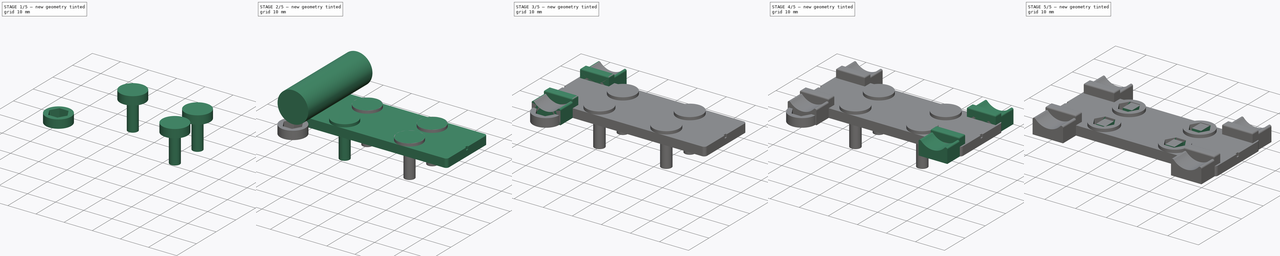
[diagram: build sequence overview — one tinted view per stage of 5, left to right]
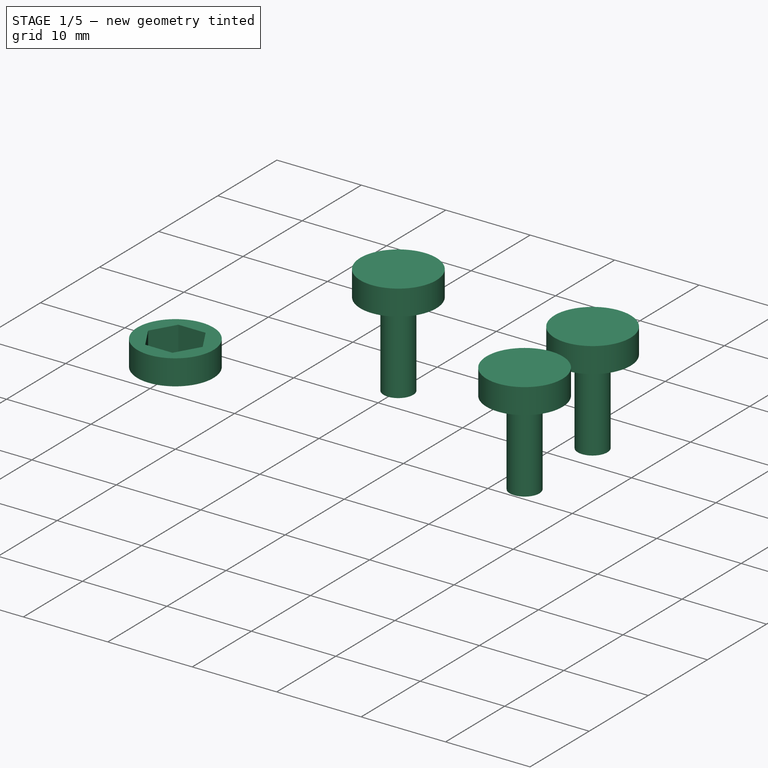
[diagram: stage 1 of 5 — iso view after this stage's code; geometry added in this stage tinted green]
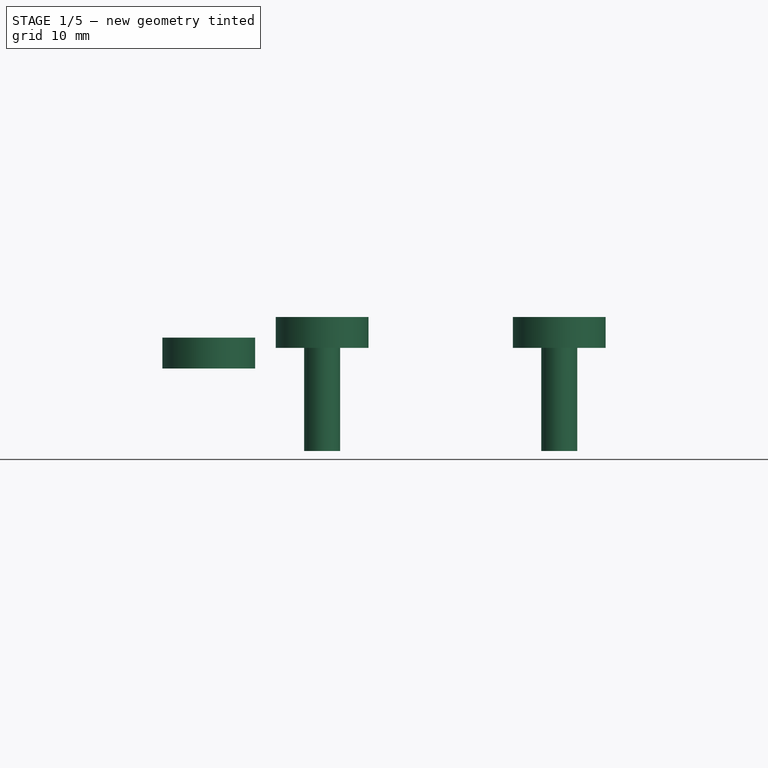
[diagram: stage 1 of 5 — front view after this stage's code; geometry added in this stage tinted green]
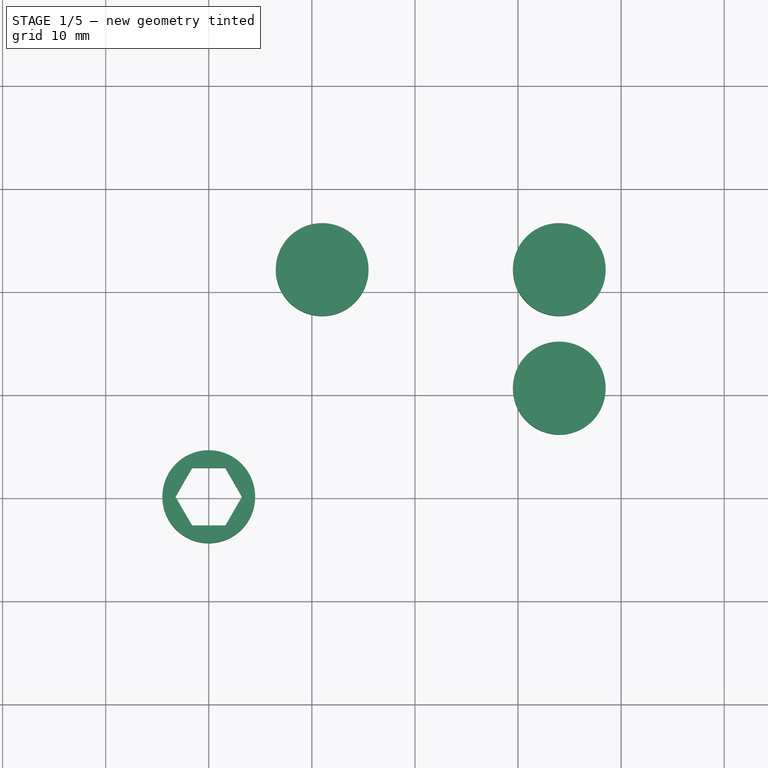
[diagram: stage 1 of 5 — top view after this stage's code; geometry added in this stage tinted green]
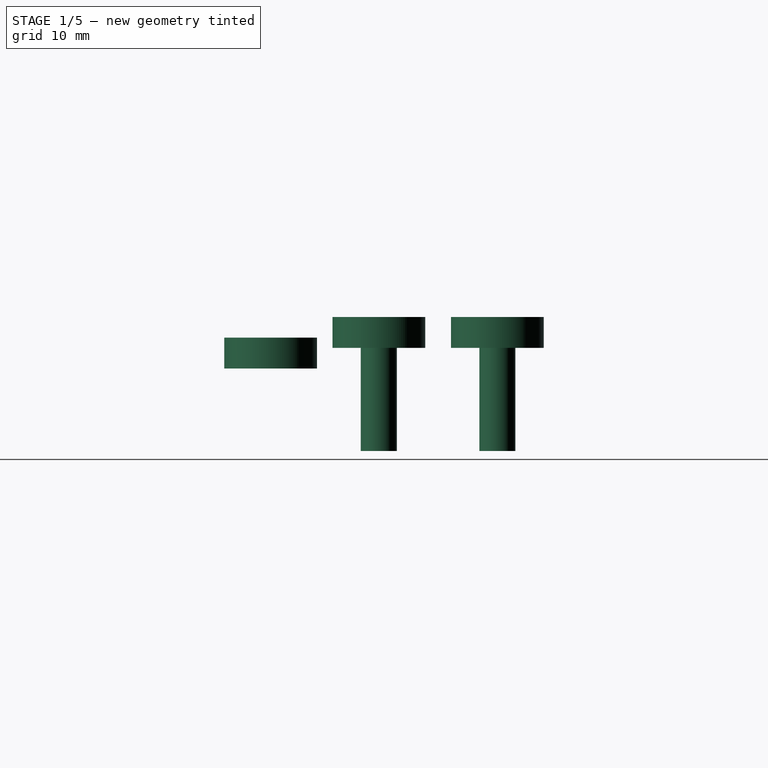
[diagram: stage 1 of 5 — right view after this stage's code; geometry added in this stage tinted green]
FCSTD DOCUMENT  (FreeCAD 0.19R24276 (Git))
Label: axleJig6
License: All rights reserved
LicenseURL: http://en.wikipedia.org/wiki/All_rights_reserved
objects: Part::Box×15, Part::Cylinder×10, Part::MultiFuse×10, Part::Cut×7, Part::Fillet×7, PartDesign::Pad×4, PartDesign::Body×4, Sketcher::SketchObject×2, Spreadsheet::Sheet×1, Part::Part2DObjectPython×1, Part::Extrusion×1
note: 65 computed .brp shape members not serialized (recipe doc carries the construction recipe); baked Part::Feature solids carry a one-line shape summary decoded from their .brp

FEATURE [Part::Cylinder] Cylinder005  label="Standoff001"
  Angle = 360
  AttacherType = Attacher::AttachEngine3D
  Height = 3
  Placement = pos=(0,0,2) rot=(0,0,1;0rad)
  Radius = 4.5
  expr: Radius = <<data>>.standoffDia / 2
FEATURE [Part::Cylinder] Cylinder006  label="M3hole001"
  Angle = 360
  AttacherType = Attacher::AttachEngine3D
  Height = 10
  Placement = pos=(0,0,-8) rot=(0,0,1;0rad)
  Radius = 1.75
  expr: Radius = <<data>>.m3holeDia / 2
FEATURE [Part::MultiFuse] Fusion005  label="NutCutout001"
  Placement = pos=(34,10.5,0) rot=(0,0,1;0rad)
  Shapes = -> [Cylinder005,Cylinder006]
FEATURE [Part::Cylinder] Cylinder007  label="Standoff002"
  Angle = 360
  AttacherType = Attacher::AttachEngine3D
  Height = 3
  Placement = pos=(0,0,2) rot=(0,0,1;0rad)
  Radius = 4.5
  expr: Radius = <<data>>.standoffDia / 2
FEATURE [Part::Cylinder] Cylinder008  label="M3hole002"
  Angle = 360
  AttacherType = Attacher::AttachEngine3D
  Height = 10
  Placement = pos=(0,0,-8) rot=(0,0,1;0rad)
  Radius = 1.75
  expr: Radius = <<data>>.m3holeDia / 2
FEATURE [Part::MultiFuse] Fusion006  label="NutCutout002"
  Placement = pos=(11,22,0) rot=(0,0,1;0rad)
  Shapes = -> [Cylinder007,Cylinder008]
FEATURE [Part::Cylinder] Cylinder009  label="Standoff003"
  Angle = 360
  AttacherType = Attacher::AttachEngine3D
  Height = 3
  Placement = pos=(0,0,2) rot=(0,0,1;0rad)
  Radius = 4.5
  expr: Radius = <<data>>.standoffDia / 2
FEATURE [Part::Cylinder] Cylinder010  label="M3hole003"
  Angle = 360
  AttacherType = Attacher::AttachEngine3D
  Height = 10
  Placement = pos=(0,0,-8) rot=(0,0,1;0rad)
  Radius = 1.75
  expr: Radius = <<data>>.m3holeDia / 2
FEATURE [Part::MultiFuse] Fusion007  label="NutCutout003"
  Placement = pos=(34,22,0) rot=(0,0,1;0rad)
  Shapes = -> [Cylinder009,Cylinder010]
FEATURE [PartDesign::Pad] Pad002
  Direction = (1,1,1)
  Length = 3
  Length2 = 100
  Profile = -> Sketch
  Type = 0
FEATURE [PartDesign::Body] Body002
  Group = -> [Pad002]
  Origin = -> Origin002
  Placement = pos=(34,10.5,1) rot=(0,0,1;0rad)
  Tip = -> Pad002
FEATURE [PartDesign::Pad] Pad003
  Direction = (1,1,1)
  Length = 3
  Length2 = 100
  Profile = -> Sketch
  Type = 0
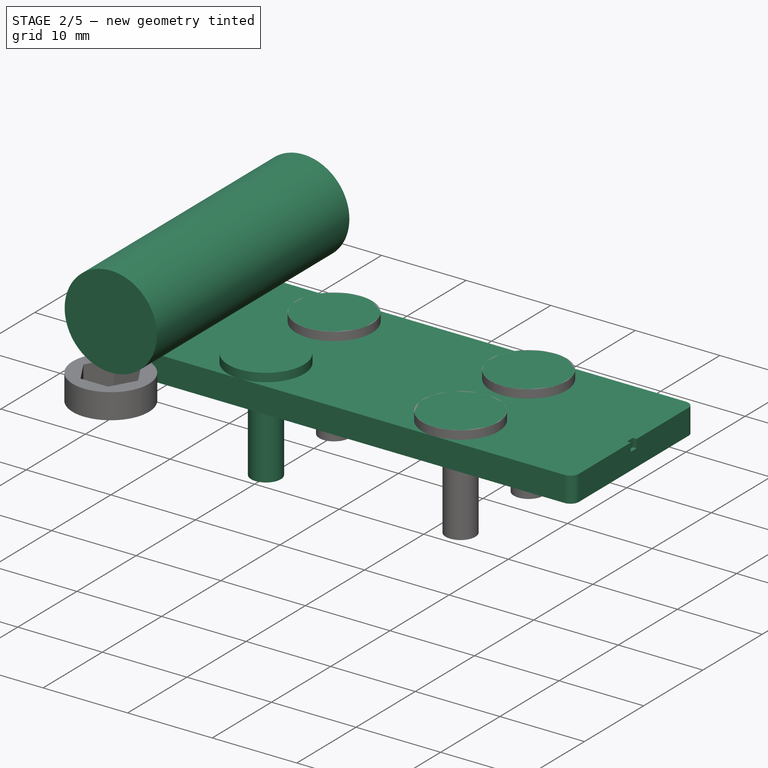
[diagram: stage 2 of 5 — iso view after this stage's code; geometry added in this stage tinted green]
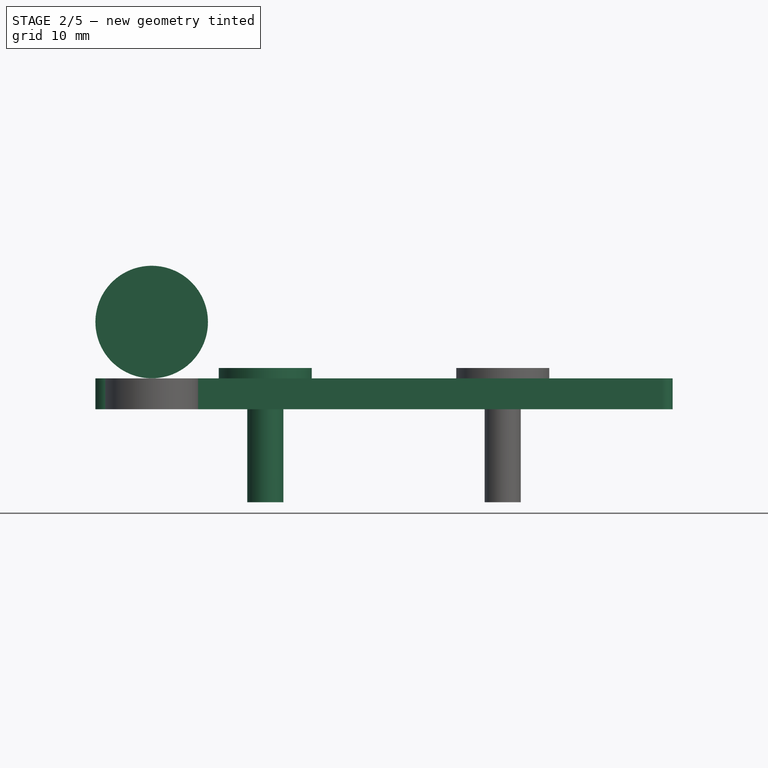
[diagram: stage 2 of 5 — front view after this stage's code; geometry added in this stage tinted green]
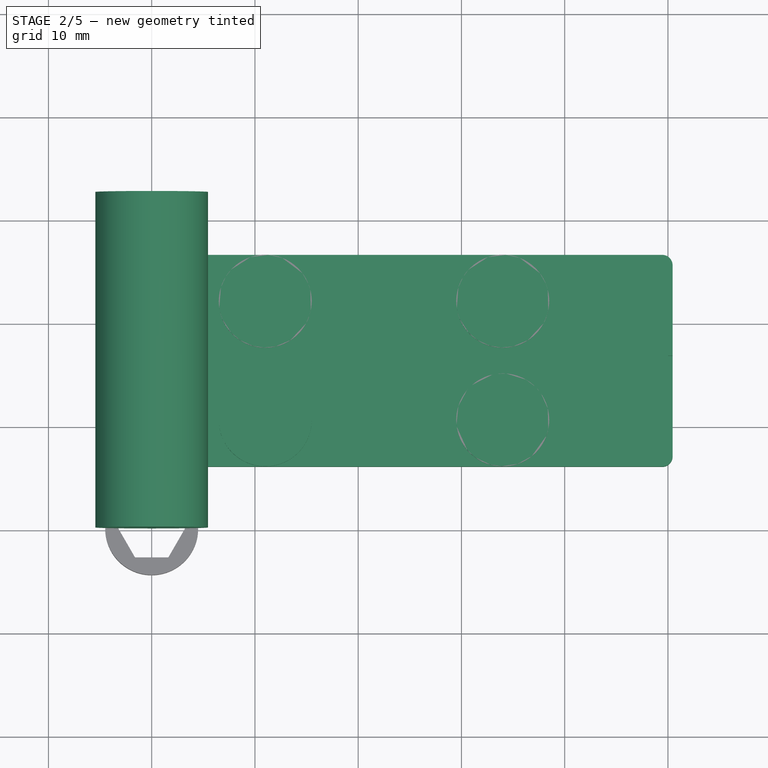
[diagram: stage 2 of 5 — top view after this stage's code; geometry added in this stage tinted green]
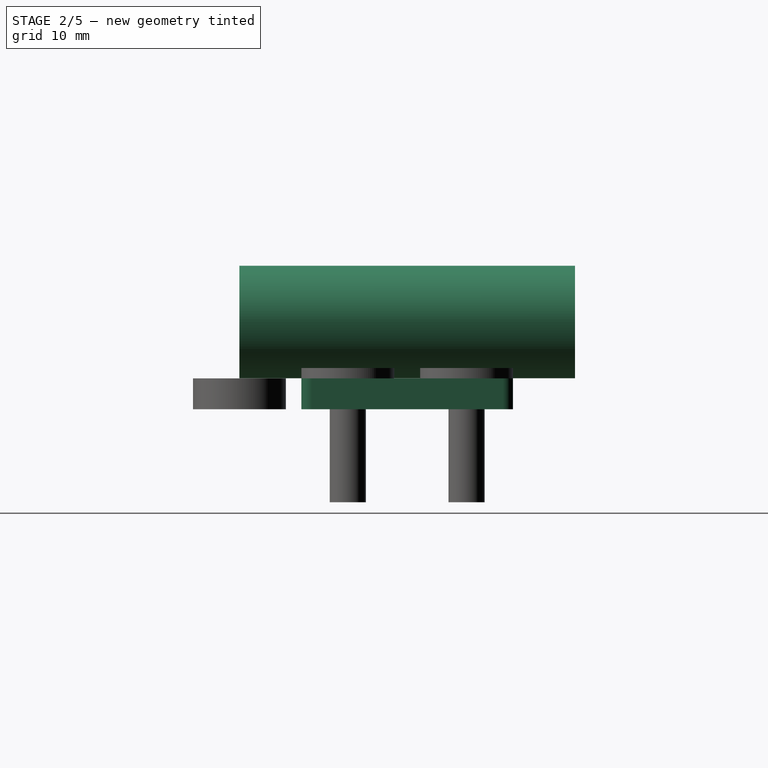
[diagram: stage 2 of 5 — right view after this stage's code; geometry added in this stage tinted green]
FEATURE [Part::Cylinder] Cylinder002
  Angle = 360
  AttacherType = Attacher::AttachEngine3D
  Height = 32.5
  Placement = pos=(0,0,8.45) rot=(-1,0,0;1.5708rad)
  Radius = 5.45
  expr: Radius = <<data>>.wheel_diameter_R / 2
  expr: Height = <<data>>.wheel_width * 2 + <<data>>.axle_width
  expr: .Placement.Base.z = <<data>>.wheel_diameter_R / 2 + <<data>>.base_thickness
FEATURE [Part::Box] Box026  label="Cube024"
  AttacherType = Attacher::AttachEngine3D
  Height = 1
  Length = 10
  Placement = pos=(-15,15.75,2) rot=(0,0,1;0rad)
  Width = 1
  expr: .Placement.Base.y = (<<data>>.wheel_width * 2 + <<data>>.axle_width) / 2 - 0.5mm
  expr: .Placement.Base.z = <<data>>.base_thickness - 1mm
FEATURE [Part::Box] Box027  label="Cube025"
  AttacherType = Attacher::AttachEngine3D
  Height = 1
  Length = 10
  Placement = pos=(50,15.75,2) rot=(0,0,1;0rad)
  Width = 1
  expr: .Placement.Base.x = <<data>>.wheel_base + 5mm
  expr: .Placement.Base.y = (<<data>>.wheel_width * 2 + <<data>>.axle_width) / 2 - 0.5mm
  expr: .Placement.Base.z = <<data>>.base_thickness - 1mm
FEATURE [Part::Box] Box008  label="base"
  AttacherType = Attacher::AttachEngine3D
  Height = 3
  Length = 55.9
  Placement = pos=(-5.45,6,0) rot=(0,0,1;0rad)
  Width = 20.5
  expr: .Placement.Base.x = -<<data>>.wheel_diameter_R / 2
  expr: Length = <<data>>.wheel_diameter_F / 2 + <<data>>.wheel_base + <<data>>.wheel_diameter_R / 2
  expr: Width = <<data>>.axle_width
  expr: Height = <<data>>.base_thickness
  expr: .Placement.Base.y = <<data>>.wheel_width
FEATURE [Part::Fillet] Fillet006
  Base = -> Box008
  Edges = 4 edges r=1: [Edge1,Edge3,Edge5,Edge7]
FEATURE [Part::MultiFuse] Fusion002
  Shapes = -> [Box027,Box026]
FEATURE [Part::Cut] Cut010
  Base = -> Fillet006
  Tool = -> Fusion002
FEATURE [PartDesign::Body] Body
  Group = -> [Sketch,Pad]
  Origin = -> Origin
  Placement = pos=(11,22,1) rot=(0,0,1;0rad)
  Tip = -> Pad
FEATURE [Part::Cylinder] Cylinder003  label="M3hole"
  Angle = 360
  AttacherType = Attacher::AttachEngine3D
  Height = 10
  Placement = pos=(0,0,-8) rot=(0,0,1;0rad)
  Radius = 1.75
  expr: Radius = <<data>>.m3holeDia / 2
FEATURE [Part::Cylinder] Cylinder004  label="Standoff"
  Angle = 360
  AttacherType = Attacher::AttachEngine3D
  Height = 3
  Placement = pos=(0,0,2) rot=(0,0,1;0rad)
  Radius = 4.5
  expr: Radius = <<data>>.standoffDia / 2
FEATURE [Part::MultiFuse] Fusion004  label="NutCutout"
  Placement = pos=(11,10.5,0) rot=(0,0,1;0rad)
  Shapes = -> [Cylinder004,Cylinder003]
FEATURE [PartDesign::Body] Body001
  Group = -> [Sketch001,Pad001]
  Origin = -> Origin001
  Placement = pos=(11,10.5,1) rot=(0,0,1;0rad)
  Tip = -> Pad001
FEATURE [Part::MultiFuse] Fusion008  label="NutCutouts"
  Placement = pos=(0,0,-1) rot=(0,0,1;0rad)
  Shapes = -> [Fusion004,Fusion005,Fusion006,Fusion007]
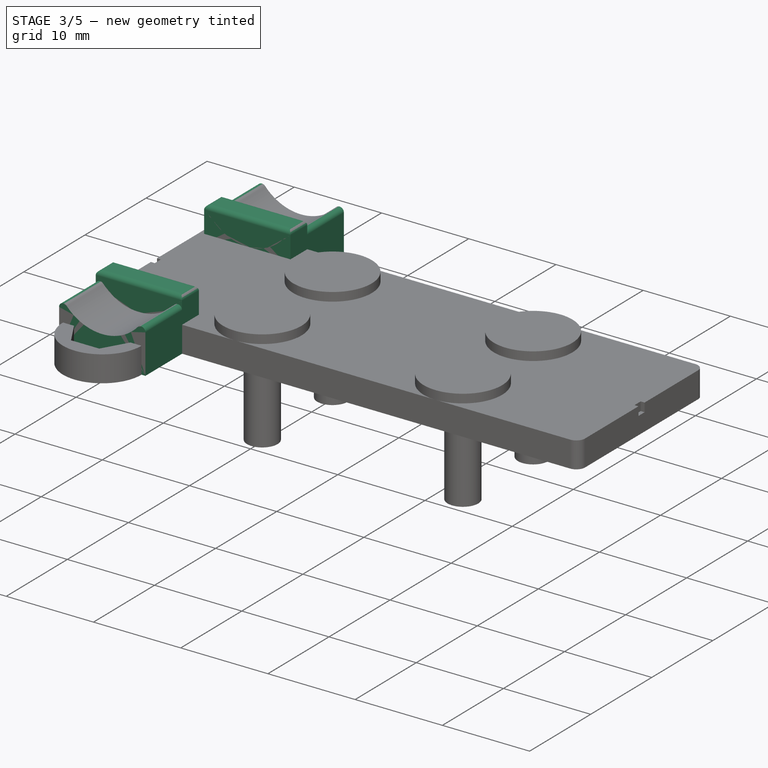
[diagram: stage 3 of 5 — iso view after this stage's code; geometry added in this stage tinted green]
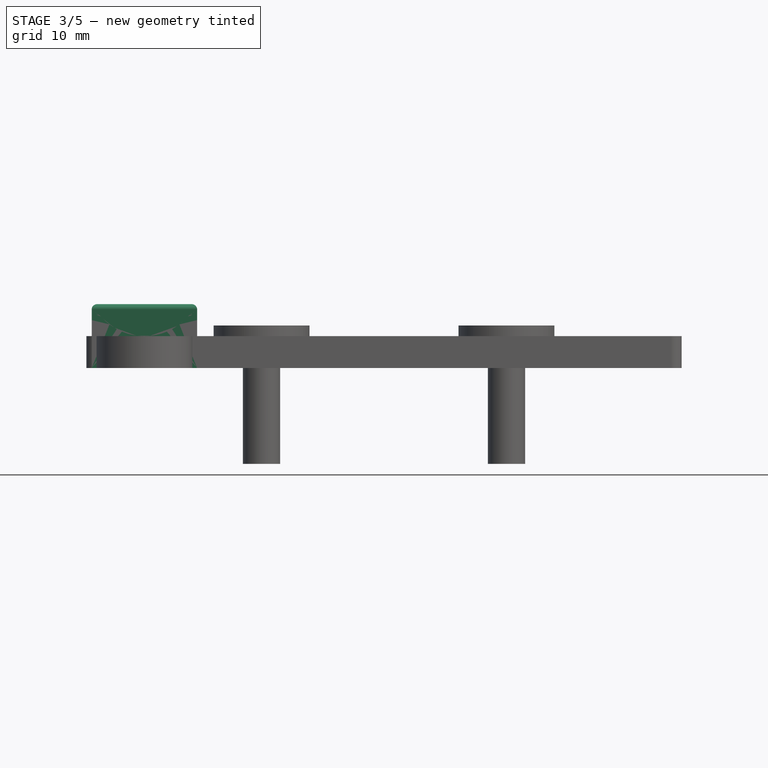
[diagram: stage 3 of 5 — front view after this stage's code; geometry added in this stage tinted green]
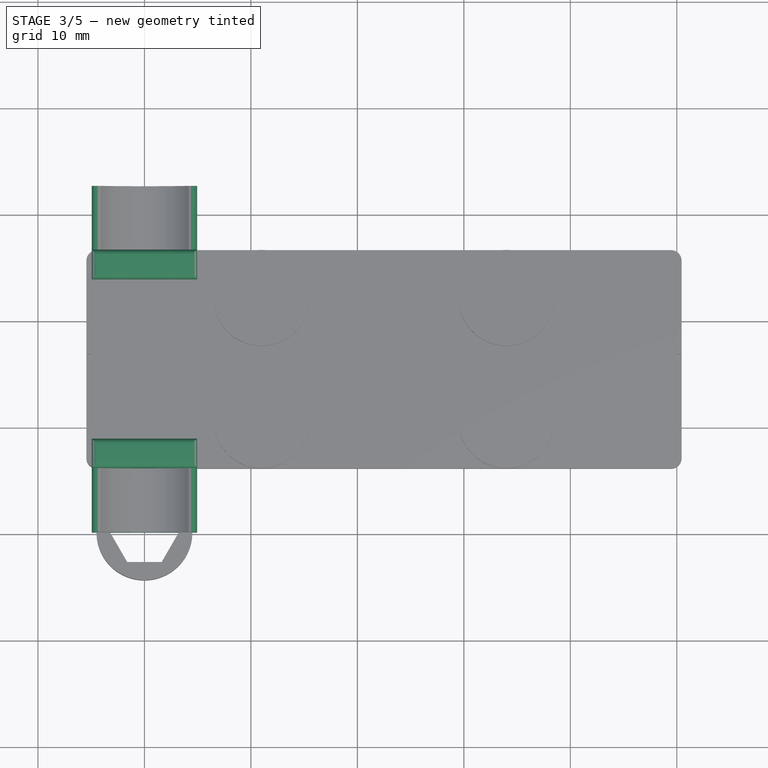
[diagram: stage 3 of 5 — top view after this stage's code; geometry added in this stage tinted green]
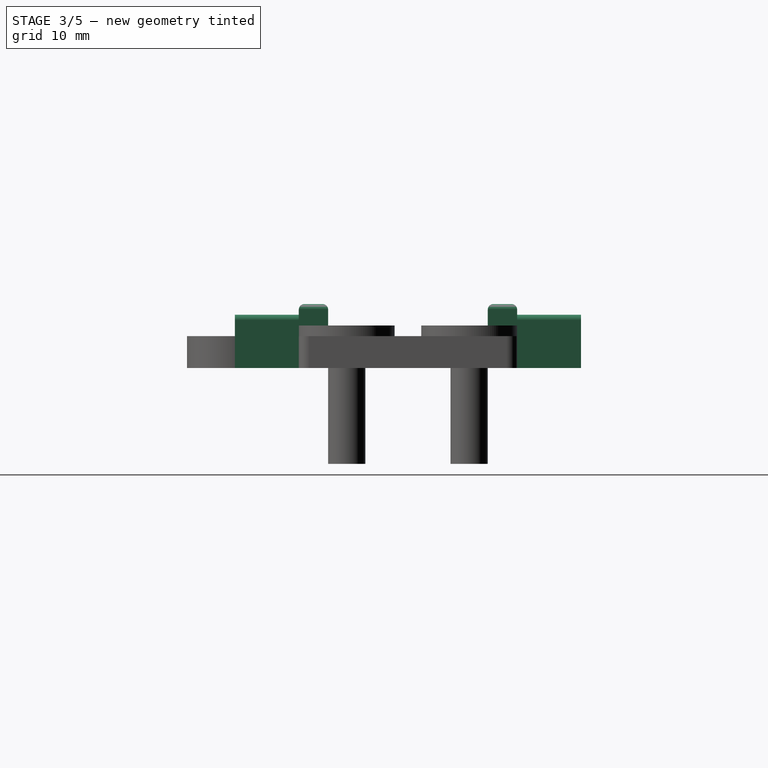
[diagram: stage 3 of 5 — right view after this stage's code; geometry added in this stage tinted green]
FEATURE [Part::Part2DObjectPython] ShapeString  # Draft 2D object (typed FeaturePython)
  FontFile = <userpath>/git/KiCad/Inkscape/fonts/Paladins-nl8P.otf
  Placement = pos=(0,18,0) rot=(1,0,0;3.14159rad)
  Size = 2
  String = BatMob.->
  Tracking = 0
FEATURE [Part::Box] Box022  label="Cube020"
  AttacherType = Attacher::AttachEngine3D
  Height = 10
  Length = 9.9
  Placement = pos=(-4.95,7.75,2) rot=(0,0,1;0rad)
  Width = 16
  expr: .Placement.Base.y = <<data>>.wheel_width + (<<data>>.axle_width - <<data>>.wheel_well) / 2 - 1mm
  expr: Width = <<data>>.wheel_well + 1mm
  expr: Length = Spreadsheet.wheel_diameter_R - 1mm
  expr: .Placement.Base.x = -<<data>>.wheel_diameter_R / 2 + 0.5mm
FEATURE [Part::Box] Box023  label="Cube021"
  AttacherType = Attacher::AttachEngine3D
  Height = 6
  Length = 9.9
  Placement = pos=(-4.95,6,0) rot=(0,0,1;0rad)
  Width = 2.75
  expr: Height = Spreadsheet.ride_height_r + <<data>>.base_thickness + 2mm
  expr: Length = Spreadsheet.wheel_diameter_R - 1mm
  expr: .Placement.Base.x = -Spreadsheet.wheel_diameter_R / 2 + 0.5mm
  expr: .Placement.Base.y = <<data>>.wheel_width
  expr: Width = (<<data>>.axle_width - <<data>>.wheel_well) / 2
FEATURE [Part::Fillet] Fillet004
  Base = -> Box023
  Edges = 4 edges r=0.5: [Edge2,Edge6,Edge10,Edge12]
FEATURE [Part::Box] Box024  label="Cube022"
  AttacherType = Attacher::AttachEngine3D
  Height = 6
  Length = 9.9
  Placement = pos=(-4.95,6,0) rot=(0,0,1;0rad)
  Width = 2.75
  expr: Height = Spreadsheet.ride_height_r + <<data>>.base_thickness + 2mm
  expr: Width = (<<data>>.axle_width - <<data>>.wheel_well) / 2
  expr: .Placement.Base.y = <<data>>.wheel_width
  expr: .Placement.Base.x = -<<data>>.wheel_diameter_R / 2 + 0.5mm
  expr: Length = Spreadsheet.wheel_diameter_R - 1mm
FEATURE [Part::Fillet] Fillet005
  Base = -> Box024
  Edges = 4 edges r=0.5: [Edge2,Edge6,Edge10,Edge12]
  Placement = pos=(0,17.75,0) rot=(0,0,1;0rad)
  expr: .Placement.Base.y = <<data>>.axle_width - (<<data>>.axle_width - <<data>>.wheel_well) / 2
FEATURE [Part::Box] Box025  label="Cube023"
  AttacherType = Attacher::AttachEngine3D
  Height = 8
  Length = 9.9
  Placement = pos=(-4.95,0,0) rot=(0,0,1;0rad)
  Width = 32.5
  expr: Width = <<data>>.wheel_width * 2 + <<data>>.axle_width
  expr: Length = Spreadsheet.wheel_diameter_R - 1mm
  expr: .Placement.Base.x = -Spreadsheet.wheel_diameter_R / 2 + 0.5mm
FEATURE [Part::Cut] Cut008
  Base = -> Box025
  Tool = -> Cylinder002
FEATURE [Part::Fillet] Fillet003
  Base = -> Cut008
  Edges = 2 edges r=0.5: [Edge2,Edge9]
FEATURE [Part::Cut] Cut009
  Base = -> Fillet003
  Tool = -> Box022
FEATURE [Part::MultiFuse] Fusion001  label="RearAxle001"
  Shapes = -> [Fillet005,Cut009,Fillet004]
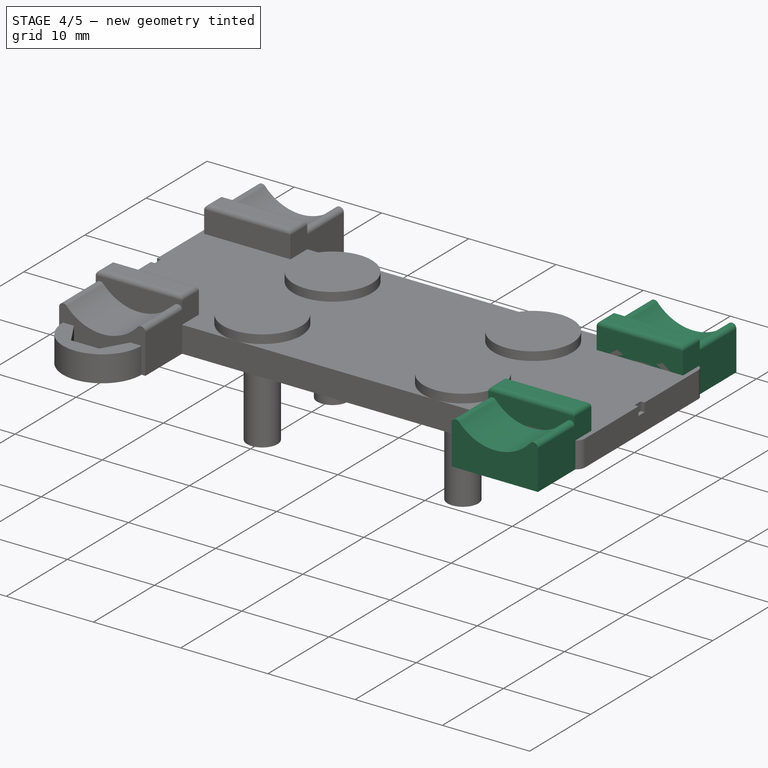
[diagram: stage 4 of 5 — iso view after this stage's code; geometry added in this stage tinted green]
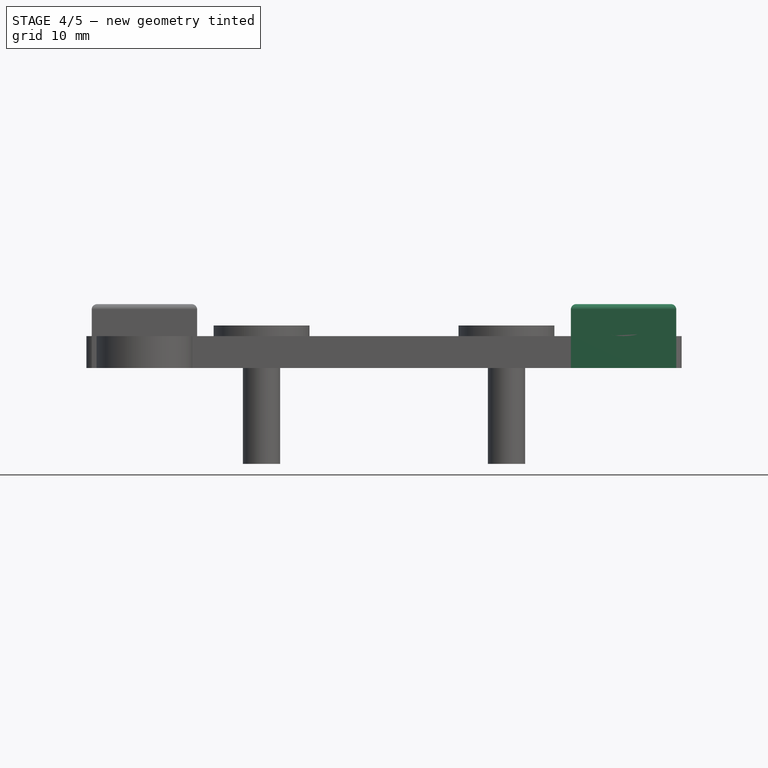
[diagram: stage 4 of 5 — front view after this stage's code; geometry added in this stage tinted green]
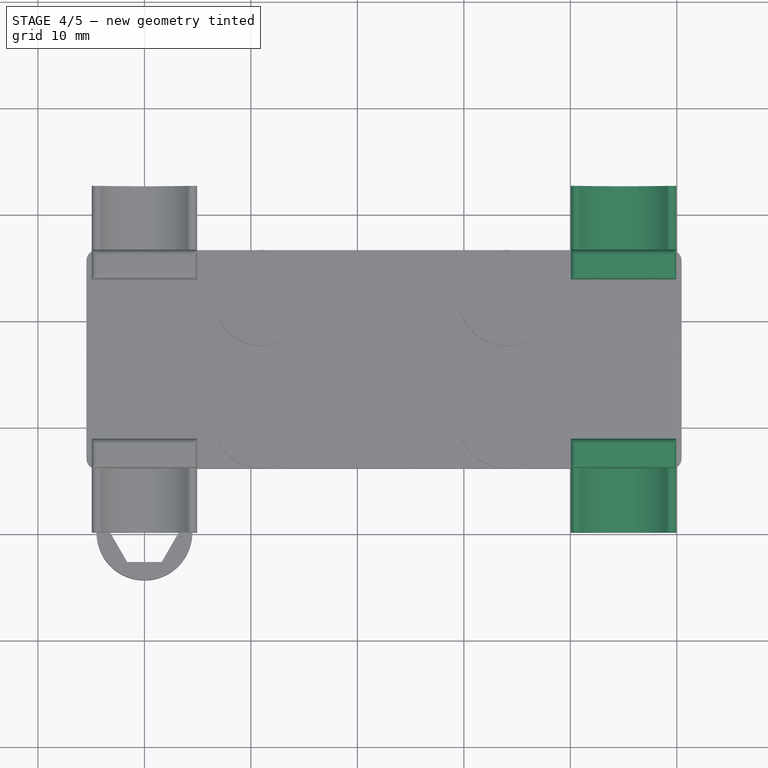
[diagram: stage 4 of 5 — top view after this stage's code; geometry added in this stage tinted green]
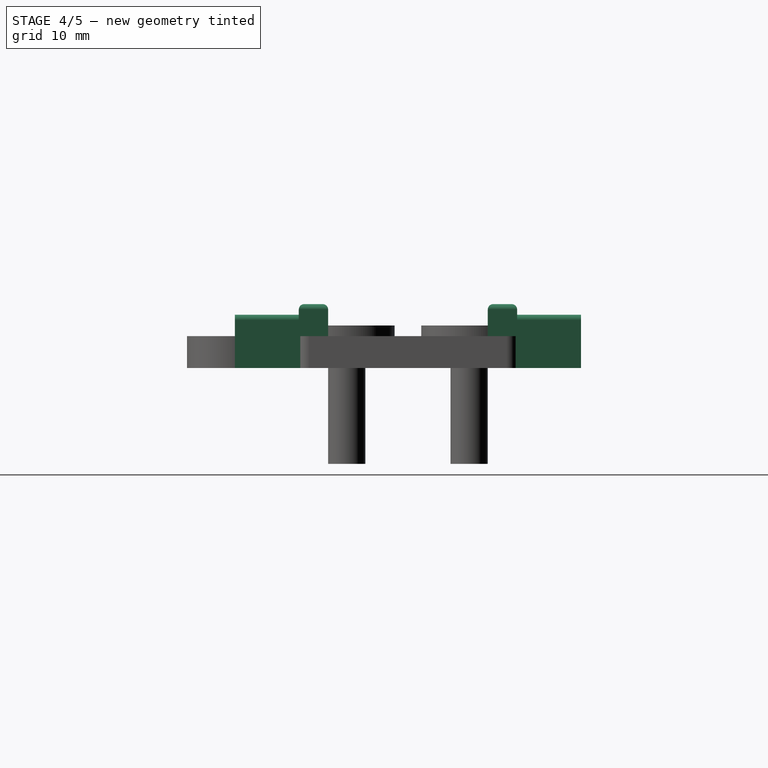
[diagram: stage 4 of 5 — right view after this stage's code; geometry added in this stage tinted green]
FEATURE [Part::Box] Box  label="Cube"
  AttacherType = Attacher::AttachEngine3D
  Height = 8
  Length = 9.9
  Placement = pos=(-4.95,0,0) rot=(0,0,1;0rad)
  Width = 32.5
  expr: .Placement.Base.x = -<<data>>.wheel_diameter_F / 2 + 0.5mm
  expr: Length = Spreadsheet.wheel_diameter_F - 1mm
  expr: Width = <<data>>.wheel_width * 2 + <<data>>.axle_width
FEATURE [Spreadsheet::Sheet] Spreadsheet  label="data"
  cells = A3=base_thickness; B3(base_thickness)==3mm; A4=wheel_base; B4(wheel_base)==45mm; C4=add 0.5mm; D4==43.4mm; E4==46.2mm; F4==44.25mm; G4==45.5mm; A5=axle_width; B5(axle_width)==20.5mm; C5=inside wheel-to-wheel; D5=21; E5=21.mm; F5==21mm; G5==20.5mm; A6=wheel_well; B6(wheel_well)==15mm; D6==16.75mm; E6==17mm; F6=16.5; G6==17.5mm; A7=ride_height_r; B7(ride_height_r)==1mm; D7==3.75mm; F7==2mm; G7==2.25mm; A8=ride_height_f; B8(ride_height_f)==1mm; G8==2.25mm; A9=axle_diameter; A10=post_wdith; A11=post_thickness; A12=wheel_diameter_F; B12(wheel_diameter_F)==10.9mm; D12==10.9mm; E12==10.9mm; F12==10.9mm; G12==10.9mm; A13=wheel_diameter_R; B13(wheel_diameter_R)==10.9mm; D13==10.9mm; E13==10.9mm; F13==12.6mm; G13==10.9mm; A14=wheel_width; B14(wheel_width)==6mm; D14==6mm; E14==6mm; F14==6mm; G14==6mm; B15=Batmobile; D15=Honda Civic Si; E15=Kia Stinger; F15=Rodger Dodger; G15=Project Speeder; A17=hexflat; B17(hexflat)==5.6mm; A18=m3holeDia; B18(m3holeDia)==3.5mm; A19=standoffDia; B19(standoffDia)==9mm
FEATURE [Part::Cylinder] Cylinder
  Angle = 360
  AttacherType = Attacher::AttachEngine3D
  Height = 32.5
  Placement = pos=(0,0,8.45) rot=(-1,0,0;1.5708rad)
  Radius = 5.45
  expr: .Placement.Base.z = <<data>>.wheel_diameter_F / 2 + <<data>>.base_thickness
  expr: Height = <<data>>.wheel_width * 2 + <<data>>.axle_width
  expr: Radius = <<data>>.wheel_diameter_F / 2
FEATURE [Part::Box] Box019  label="Cube017"
  AttacherType = Attacher::AttachEngine3D
  Height = 10
  Length = 9.9
  Placement = pos=(-4.95,7.75,2) rot=(0,0,1;0rad)
  Width = 16
  expr: .Placement.Base.x = -<<data>>.wheel_diameter_F / 2 + 0.5mm
  expr: Length = Spreadsheet.wheel_diameter_F - 1mm
  expr: Width = <<data>>.wheel_well + 1mm
  expr: .Placement.Base.y = <<data>>.wheel_width + (<<data>>.axle_width - <<data>>.wheel_well) / 2 - 1mm
FEATURE [Part::Cut] Cut
  Base = -> Box
  Tool = -> Cylinder
FEATURE [Part::Fillet] Fillet
  Base = -> Cut
  Edges = 2 edges r=0.5: [Edge2,Edge9]
FEATURE [Part::Box] Box020  label="FR spacer"
  AttacherType = Attacher::AttachEngine3D
  Height = 6
  Length = 9.9
  Placement = pos=(-4.95,6,0) rot=(0,0,1;0rad)
  Width = 2.75
  expr: Height = Spreadsheet.ride_height_f + <<data>>.base_thickness + 2mm
  expr: Width = (<<data>>.axle_width - <<data>>.wheel_well) / 2
  expr: .Placement.Base.y = <<data>>.wheel_width
  expr: .Placement.Base.x = -<<data>>.wheel_diameter_F / 2 + 0.5mm
  expr: Length = Spreadsheet.wheel_diameter_F - 1mm
FEATURE [Part::Fillet] Fillet001
  Base = -> Box020
  Edges = 4 edges r=0.5: [Edge2,Edge6,Edge10,Edge12]
FEATURE [Part::Cut] Cut007
  Base = -> Fillet
  Tool = -> Box019
FEATURE [Part::Box] Box021  label="RL spacer"
  AttacherType = Attacher::AttachEngine3D
  Height = 6
  Length = 9.9
  Placement = pos=(-4.95,6,0) rot=(0,0,1;0rad)
  Width = 2.75
  expr: Height = Spreadsheet.ride_height_f + <<data>>.base_thickness + 2mm
  expr: Length = Spreadsheet.wheel_diameter_F - 1mm
  expr: .Placement.Base.x = -<<data>>.wheel_diameter_F / 2 + 0.5mm
  expr: .Placement.Base.y = <<data>>.wheel_width
  expr: Width = (<<data>>.axle_width - <<data>>.wheel_well) / 2
FEATURE [Part::Fillet] Fillet002
  Base = -> Box021
  Edges = 4 edges r=0.5: [Edge2,Edge6,Edge10,Edge12]
  Placement = pos=(0,17.75,0) rot=(0,0,1;0rad)
  expr: .Placement.Base.y = <<data>>.axle_width - (<<data>>.axle_width - <<data>>.wheel_well) / 2
FEATURE [Part::MultiFuse] Fusion  label="FrontAxle"
  Placement = pos=(45,0,0) rot=(0,0,1;0rad)
  Shapes = -> [Fillet002,Cut007,Fillet001]
  expr: .Placement.Base.x = <<data>>.wheel_base
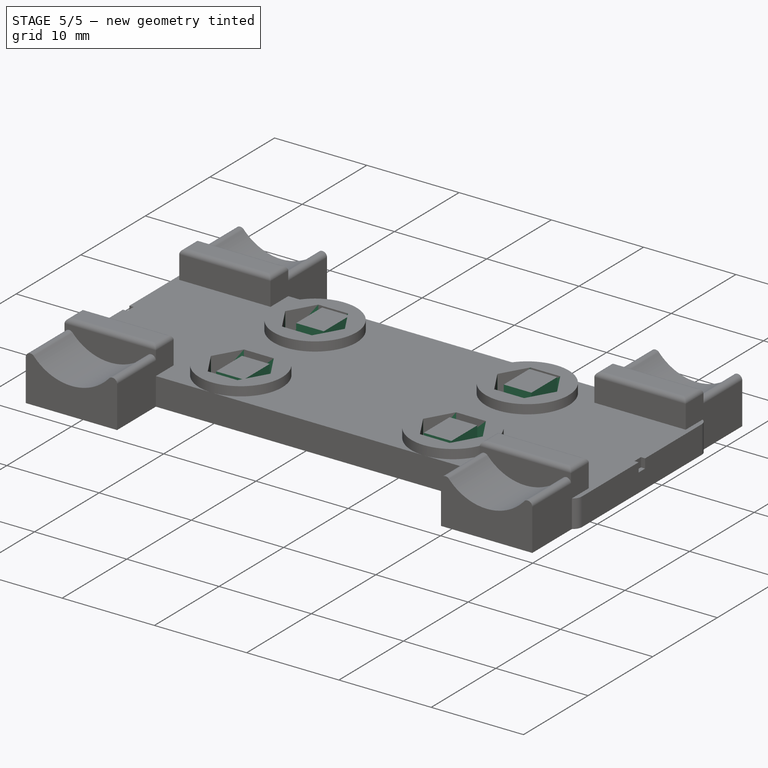
[diagram: stage 5 of 5 — iso view after this stage's code; geometry added in this stage tinted green]
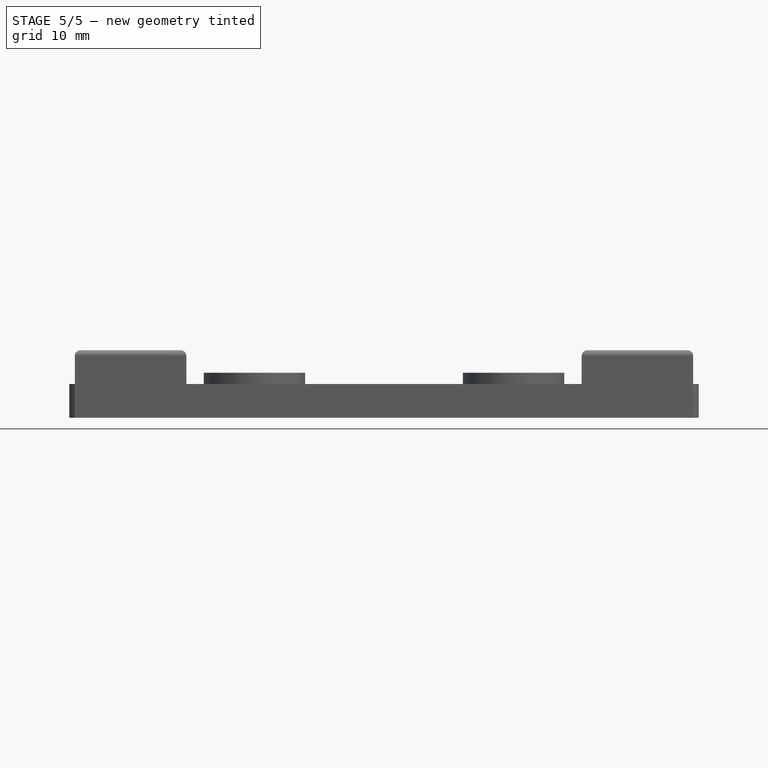
[diagram: stage 5 of 5 — front view after this stage's code; geometry added in this stage tinted green]
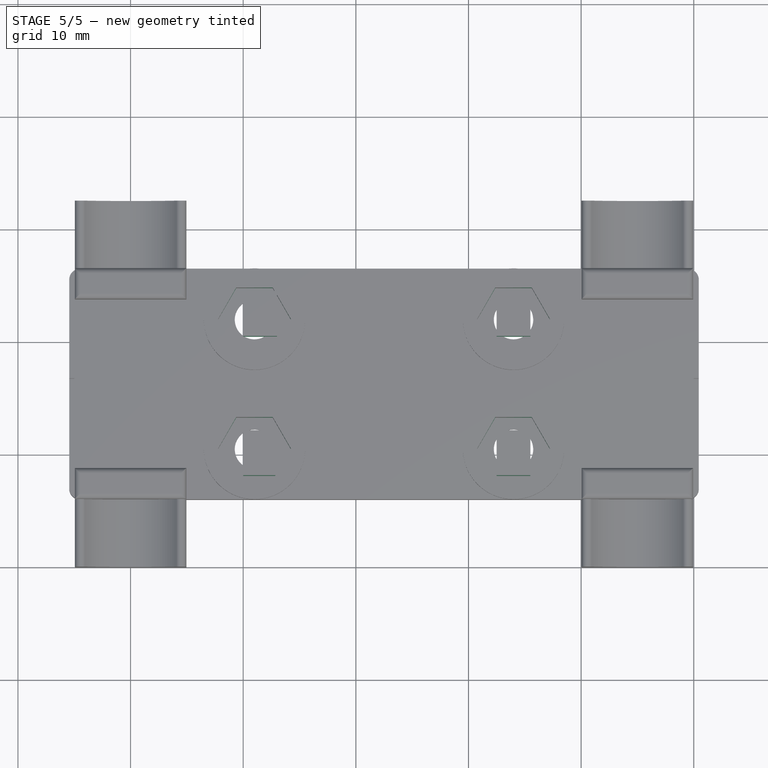
[diagram: stage 5 of 5 — top view after this stage's code; geometry added in this stage tinted green]
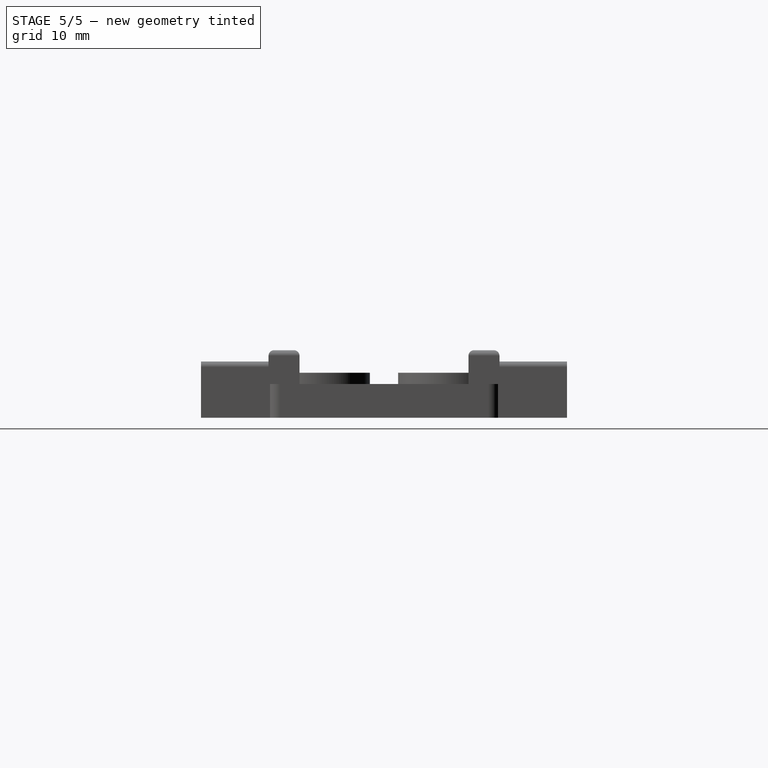
[diagram: stage 5 of 5 — right view after this stage's code; geometry added in this stage tinted green]
FEATURE [Part::Extrusion] Extrude
  Base = -> ShapeString
  Dir = (0,0,-1)
  DirMode = 2
  FaceMakerClass = Part::FaceMakerBullseye
  LengthFwd = 1
  LengthRev = 0
  Reversed = true
  Solid = false
  Symmetric = false
FEATURE [Part::Box] Box028  label="Cube026"
  AttacherType = Attacher::AttachEngine3D
  Height = 4
  Length = 3
  Placement = pos=(10,8.125,0) rot=(0,0,1;0rad)
  Width = 4
  expr: Height = Spreadsheet.ride_height_r + <<data>>.base_thickness
  expr: .Placement.Base.x = <<data>>.wheel_base / 2 - 12.5mm
  expr: .Placement.Base.y = (<<data>>.wheel_width + <<data>>.axle_width / 2) / 2
FEATURE [Part::Box] Box029  label="Cube027"
  AttacherType = Attacher::AttachEngine3D
  Height = 4
  Length = 3
  Placement = pos=(10,20.5,0) rot=(0,0,1;0rad)
  Width = 4
  expr: .Placement.Base.y = <<data>>.wheel_width + <<data>>.axle_width / 2 + <<data>>.axle_width / 2 - 6mm
  expr: .Placement.Base.x = <<data>>.wheel_base / 2 - 12.5mm
  expr: Height = Spreadsheet.ride_height_r + <<data>>.base_thickness
FEATURE [Part::Box] Box030  label="Cube028"
  AttacherType = Attacher::AttachEngine3D
  Height = 4
  Length = 3
  Placement = pos=(32.5,8.125,0) rot=(0,0,1;0rad)
  Width = 4
  expr: .Placement.Base.y = (<<data>>.wheel_width + <<data>>.axle_width / 2) / 2
  expr: .Placement.Base.x = <<data>>.wheel_base / 2 + 10mm
  expr: Height = Spreadsheet.ride_height_f + <<data>>.base_thickness
FEATURE [Part::Box] Box031  label="Cube029"
  AttacherType = Attacher::AttachEngine3D
  Height = 4
  Length = 3
  Placement = pos=(32.5,20.5,0) rot=(0,0,1;0rad)
  Width = 4
  expr: Height = Spreadsheet.ride_height_f + <<data>>.base_thickness
  expr: .Placement.Base.x = <<data>>.wheel_base / 2 + 10mm
  expr: .Placement.Base.y = <<data>>.wheel_width + <<data>>.axle_width / 2 + <<data>>.axle_width / 2 - 6mm
FEATURE [Part::MultiFuse] Fusion003
  Shapes = -> [Cut010,Fusion001,Fusion]
FEATURE [Part::Cut] Cut011
  Base = -> Fusion003
  Tool = -> Extrude
FEATURE [Sketcher::SketchObject] Sketch
  FullyConstrained = false
  MapMode = 5
  Support = -> [XY_Plane003]
  expr: Constraints[18] = 5.6mm / 2
  expr: Constraints[19] = <<data>>.standoffDia / 2
  sketch-geometry (8):
    g0: LineSegment StartX=3.23316 StartY=0 StartZ=0 EndX=1.61658 EndY=2.8 EndZ=0
    g1: LineSegment StartX=1.61658 StartY=2.8 StartZ=0 EndX=-1.61658 EndY=2.8 EndZ=0
    g2: LineSegment StartX=-1.61658 StartY=2.8 StartZ=0 EndX=-3.23316 EndY=4e-16 EndZ=0
    g3: LineSegment StartX=-3.23316 StartY=4e-16 StartZ=0 EndX=-1.61658 EndY=-2.8 EndZ=0
    g4: LineSegment StartX=-1.61658 StartY=-2.8 StartZ=0 EndX=1.61658 EndY=-2.8 EndZ=0
    g5: LineSegment StartX=1.61658 StartY=-2.8 StartZ=0 EndX=3.23316 EndY=0 EndZ=0
    g6: Circle CenterX=0 CenterY=0 CenterZ=0 NormalX=0 NormalY=0 NormalZ=1 AngleXU=0 Radius=3.23316
    g7: Circle CenterX=0 CenterY=0 CenterZ=0 NormalX=0 NormalY=0 NormalZ=1 AngleXU=0 Radius=4.5
  constraints (17):
    c: Coincident(g0,g1)
    c: Coincident(g1,g2)
    c: Coincident(g2,g3)
    c: Coincident(g3,g4)
    c: Coincident(g4,g5)
    c: Coincident(g5,g0)
    c: Equal(g0, g1-g4) x4
    c: PointOnObject(g0,g6)
    c: PointOnObject(g1,g6)
    c: PointOnObject(g2,g6)
    c: PointOnObject(g3,g6)
    c: PointOnObject(g4,g6)
    c: PointOnObject(g5,g6)
    c: Coincident(g6,g-1)
    c: PointOnObject(g5,g-1)
    c: DistanceY(g2,g0) = 2.8
    c: Radius(g7) = 4.5
FEATURE [PartDesign::Pad] Pad
  Direction = (1,1,1)
  Length = 3
  Length2 = 100
  Profile = -> Sketch
  Type = 0
FEATURE [Sketcher::SketchObject] Sketch001
  FullyConstrained = false
  MapMode = 5
  Support = -> [XY_Plane001]
  expr: Constraints[19] = <<data>>.standoffDia / 2
  expr: Constraints[18] = 5.6mm / 2
  sketch-geometry (8):
    g0: LineSegment StartX=3.23316 StartY=0 StartZ=0 EndX=1.61658 EndY=2.8 EndZ=0
    g1: LineSegment StartX=1.61658 StartY=2.8 StartZ=0 EndX=-1.61658 EndY=2.8 EndZ=0
    g2: LineSegment StartX=-1.61658 StartY=2.8 StartZ=0 EndX=-3.23316 EndY=4e-16 EndZ=0
    g3: LineSegment StartX=-3.23316 StartY=4e-16 StartZ=0 EndX=-1.61658 EndY=-2.8 EndZ=0
    g4: LineSegment StartX=-1.61658 StartY=-2.8 StartZ=0 EndX=1.61658 EndY=-2.8 EndZ=0
    g5: LineSegment StartX=1.61658 StartY=-2.8 StartZ=0 EndX=3.23316 EndY=0 EndZ=0
    g6: Circle CenterX=0 CenterY=0 CenterZ=0 NormalX=0 NormalY=0 NormalZ=1 AngleXU=0 Radius=3.23316
    g7: Circle CenterX=0 CenterY=0 CenterZ=0 NormalX=0 NormalY=0 NormalZ=1 AngleXU=0 Radius=4.5
  constraints (17):
    c: Coincident(g0,g1)
    c: Coincident(g1,g2)
    c: Coincident(g2,g3)
    c: Coincident(g3,g4)
    c: Coincident(g4,g5)
    c: Coincident(g5,g0)
    c: Equal(g0, g1-g4) x4
    c: PointOnObject(g0,g6)
    c: PointOnObject(g1,g6)
    c: PointOnObject(g2,g6)
    c: PointOnObject(g3,g6)
    c: PointOnObject(g4,g6)
    c: PointOnObject(g5,g6)
    c: Coincident(g6,g-1)
    c: PointOnObject(g5,g-1)
    c: DistanceY(g2,g0) = 2.8
    c: Radius(g7) = 4.5
FEATURE [PartDesign::Pad] Pad001
  Direction = (1,1,1)
  Length = 3
  Length2 = 100
  Profile = -> Sketch001
  Type = 0
FEATURE [Part::Cut] Cut012
  Base = -> Cut011
  Tool = -> Fusion008
FEATURE [PartDesign::Body] Body003
  Group = -> [Pad003]
  Origin = -> Origin003
  Placement = pos=(34,22,1) rot=(0,0,1;0rad)
  Tip = -> Pad003
FEATURE [Part::MultiFuse] Fusion009
  Shapes = -> [Body,Body001,Cut012,Body002,Body003]
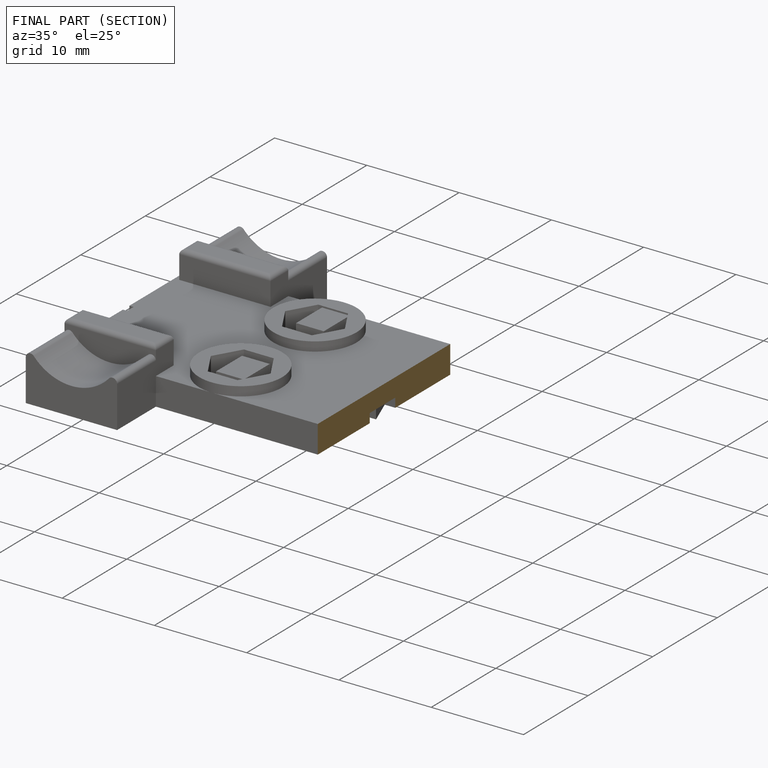
[diagram: finished part — half-section view (interior)]
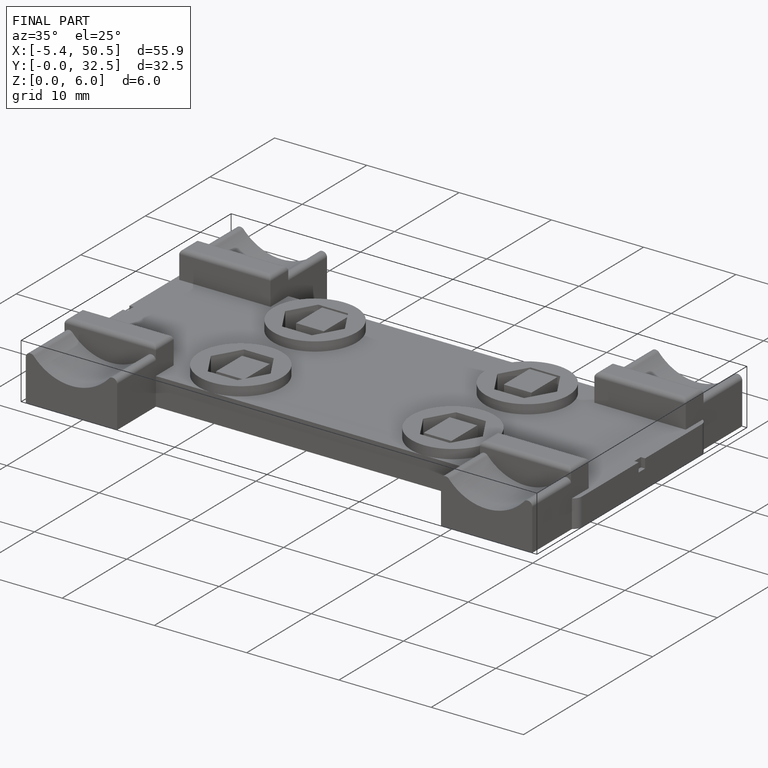
[diagram: finished part — iso view with bounding-box wireframe]
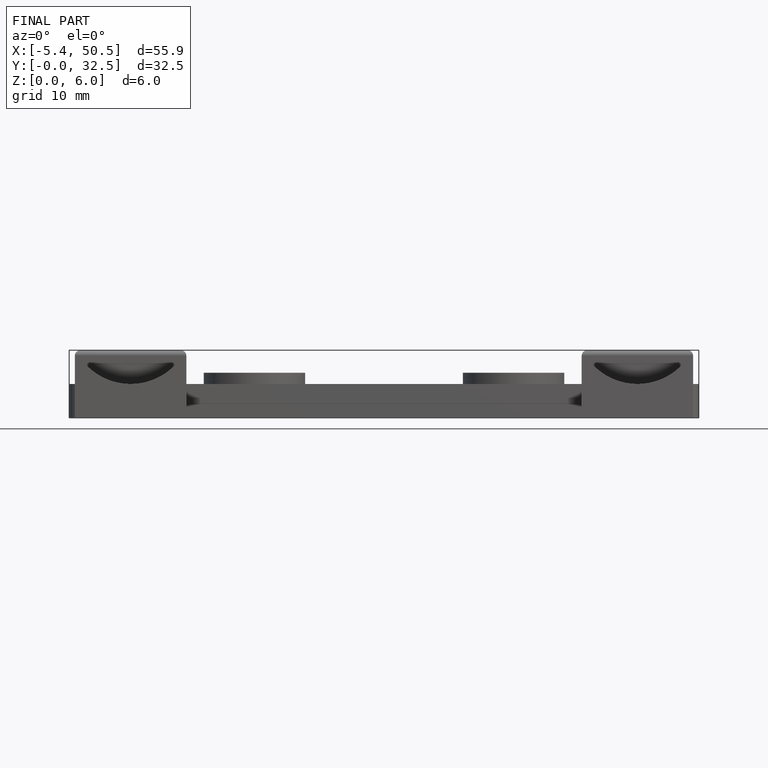
[diagram: finished part — front view with bounding-box wireframe]
